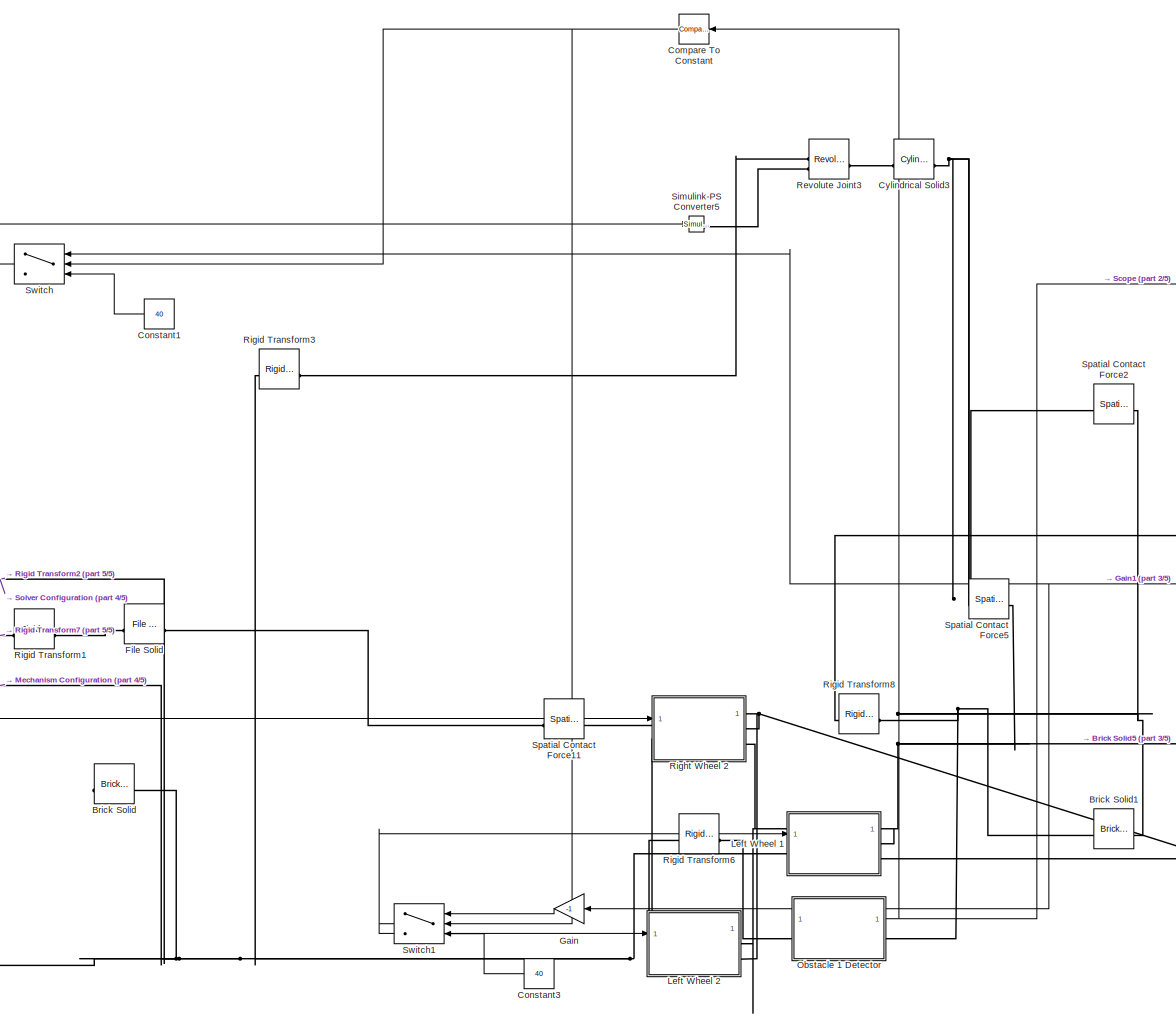
[diagram: root canvas - part 1/5, center side, full height]
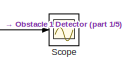
[diagram: root canvas - part 2/5, top center region]
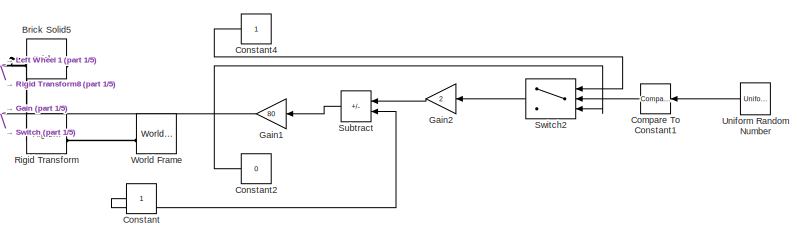
[diagram: root canvas - part 3/5, middle right region]
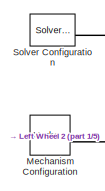
[diagram: root canvas - part 4/5, middle left region]
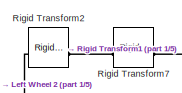
[diagram: root canvas - part 5/5, middle left region]
MODEL slx_b058560f6f9a
KIND model
CONFIG AbsTol = auto
CONFIG EnableMultiTasking = off
CONFIG FixedStep = auto
CONFIG MaxStep = auto
CONFIG MinStep = auto
CONFIG RelTol = 1e-3
CONFIG SampleTimeConstraint = Unconstrained
CONFIG SolverName = VariableStepAuto
CONFIG StartTime = 0.0
CONFIG StopTime = inf
BLOCK [Reference] Brick Solid  REF=sm_lib/Body Elements/Brick Solid
  SourceBlock = sm_lib/Body Elements/Brick Solid
  SourceType = Brick Solid
BLOCK [Reference] Brick Solid1  REF=sm_lib/Body Elements/Brick Solid
  SourceBlock = sm_lib/Body Elements/Brick Solid
  SourceType = Brick Solid
BLOCK [Reference] Brick Solid5  REF=sm_lib/Body Elements/Brick Solid
  SourceBlock = sm_lib/Body Elements/Brick Solid
  SourceType = Brick Solid
BLOCK [Reference] Compare To Constant  REF=simulink/Logic and Bit
Operations/Compare
To Constant
  SourceBlock = simulink/Logic and Bit\nOperations/Compare\nTo Constant
  SourceType = Compare To Constant
BLOCK [Reference] Compare To Constant1  REF=simulink/Logic and Bit
Operations/Compare
To Constant
  SourceBlock = simulink/Logic and Bit\nOperations/Compare\nTo Constant
  SourceType = Compare To Constant
BLOCK [Constant] Constant
BLOCK [Constant] Constant1
  Value = 40
  VectorParams1D = off
BLOCK [Constant] Constant2
  Value = 0
BLOCK [Constant] Constant3
  Value = 40
  VectorParams1D = off
BLOCK [Constant] Constant4
BLOCK [Reference] Cylindrical Solid3  REF=sm_lib/Body Elements/Cylindrical Solid
  SourceBlock = sm_lib/Body Elements/Cylindrical Solid
  SourceType = Cylindrical Solid
BLOCK [Reference] File Solid  REF=sm_lib/Body Elements/File Solid
  SourceBlock = sm_lib/Body Elements/File Solid
  SourceType = File Solid
BLOCK [Gain] Gain
  Gain = -1
BLOCK [Gain] Gain1
  Gain = 80
BLOCK [Gain] Gain2
  Gain = 2
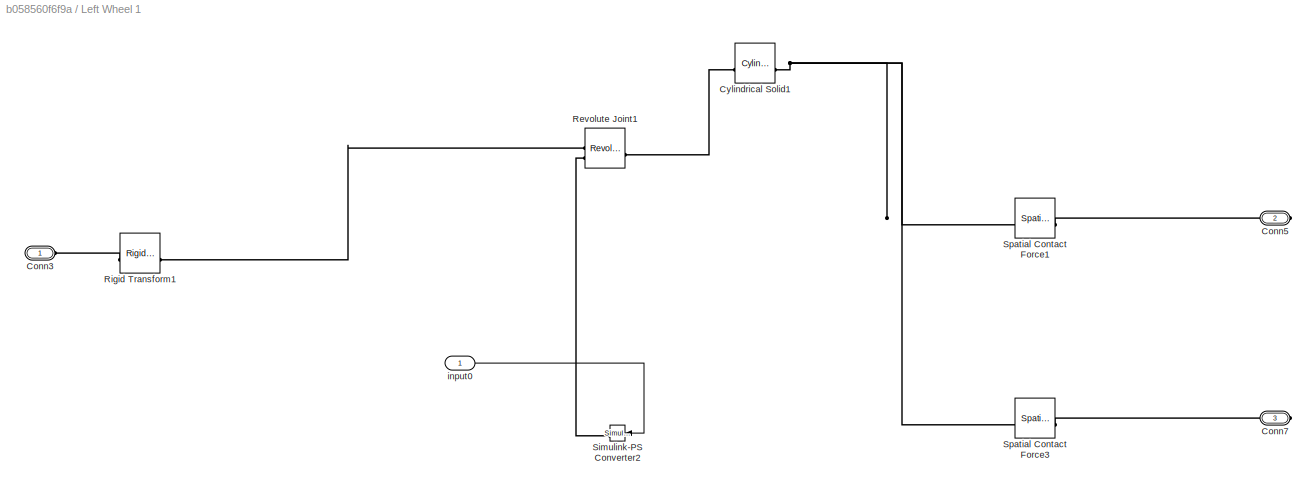
BLOCK [SubSystem] Left Wheel 1
BLOCK [PMIOPort] Left Wheel 1/Conn3
  Side = Left
BLOCK [PMIOPort] Left Wheel 1/Conn5
  Port = 2
  Side = Right
BLOCK [PMIOPort] Left Wheel 1/Conn7
  Port = 3
  Side = Right
BLOCK [Reference] Left Wheel 1/Cylindrical Solid1  REF=sm_lib/Body Elements/Cylindrical Solid
  SourceBlock = sm_lib/Body Elements/Cylindrical Solid
  SourceType = Cylindrical Solid
BLOCK [Reference] Left Wheel 1/Revolute Joint1  REF=sm_lib/Joints/Revolute Joint
  SourceBlock = sm_lib/Joints/Revolute Joint
  SourceType = Revolute Joint
BLOCK [Reference] Left Wheel 1/Rigid Transform1  REF=sm_lib/Frames and
Transforms/Rigid
Transform
  SourceBlock = sm_lib/Frames and\nTransforms/Rigid\nTransform
  SourceType = Rigid\nTransform
BLOCK [Reference] Left Wheel 1/Simulink-PS Converter2  REF=nesl_utility/Simulink-PS
Converter
  SourceBlock = nesl_utility/Simulink-PS\nConverter
  SourceType = Simulink-PS\nConverter
BLOCK [Reference] Left Wheel 1/Spatial Contact Force1  REF=sm_lib/Forces and
Torques/Spatial
Contact Force
  SourceBlock = sm_lib/Forces and\nTorques/Spatial\nContact Force
  SourceType = Spatial\nContact Force
BLOCK [Reference] Left Wheel 1/Spatial Contact Force3  REF=sm_lib/Forces and
Torques/Spatial
Contact Force
  SourceBlock = sm_lib/Forces and\nTorques/Spatial\nContact Force
  SourceType = Spatial\nContact Force
BLOCK [Inport] Left Wheel 1/input0
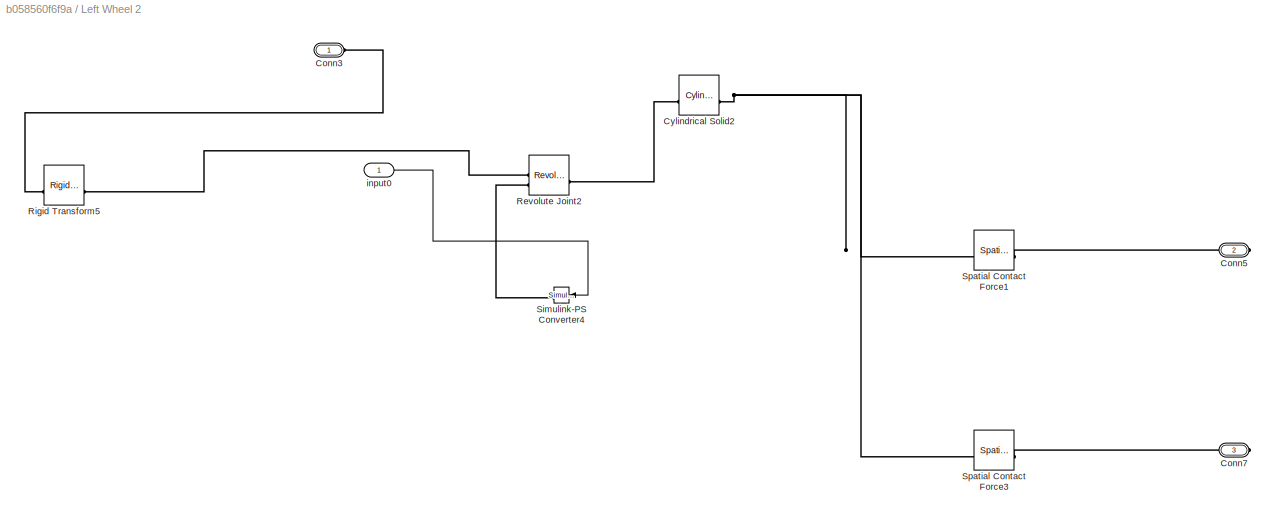
BLOCK [SubSystem] Left Wheel 2
BLOCK [PMIOPort] Left Wheel 2/Conn3
  Side = Left
BLOCK [PMIOPort] Left Wheel 2/Conn5
  Port = 2
  Side = Right
BLOCK [PMIOPort] Left Wheel 2/Conn7
  Port = 3
  Side = Right
BLOCK [Reference] Left Wheel 2/Cylindrical Solid2  REF=sm_lib/Body Elements/Cylindrical Solid
  SourceBlock = sm_lib/Body Elements/Cylindrical Solid
  SourceType = Cylindrical Solid
BLOCK [Reference] Left Wheel 2/Revolute Joint2  REF=sm_lib/Joints/Revolute Joint
  SourceBlock = sm_lib/Joints/Revolute Joint
  SourceType = Revolute Joint
BLOCK [Reference] Left Wheel 2/Rigid Transform5  REF=sm_lib/Frames and
Transforms/Rigid
Transform
  SourceBlock = sm_lib/Frames and\nTransforms/Rigid\nTransform
  SourceType = Rigid\nTransform
BLOCK [Reference] Left Wheel 2/Simulink-PS Converter4  REF=nesl_utility/Simulink-PS
Converter
  SourceBlock = nesl_utility/Simulink-PS\nConverter
  SourceType = Simulink-PS\nConverter
BLOCK [Reference] Left Wheel 2/Spatial Contact Force1  REF=sm_lib/Forces and
Torques/Spatial
Contact Force
  SourceBlock = sm_lib/Forces and\nTorques/Spatial\nContact Force
  SourceType = Spatial\nContact Force
BLOCK [Reference] Left Wheel 2/Spatial Contact Force3  REF=sm_lib/Forces and
Torques/Spatial
Contact Force
  SourceBlock = sm_lib/Forces and\nTorques/Spatial\nContact Force
  SourceType = Spatial\nContact Force
BLOCK [Inport] Left Wheel 2/input0
BLOCK [Reference] Mechanism Configuration  REF=sm_lib/Utilities/Mechanism
Configuration
  SourceBlock = sm_lib/Utilities/Mechanism\nConfiguration
  SourceType = Mechanism\nConfiguration
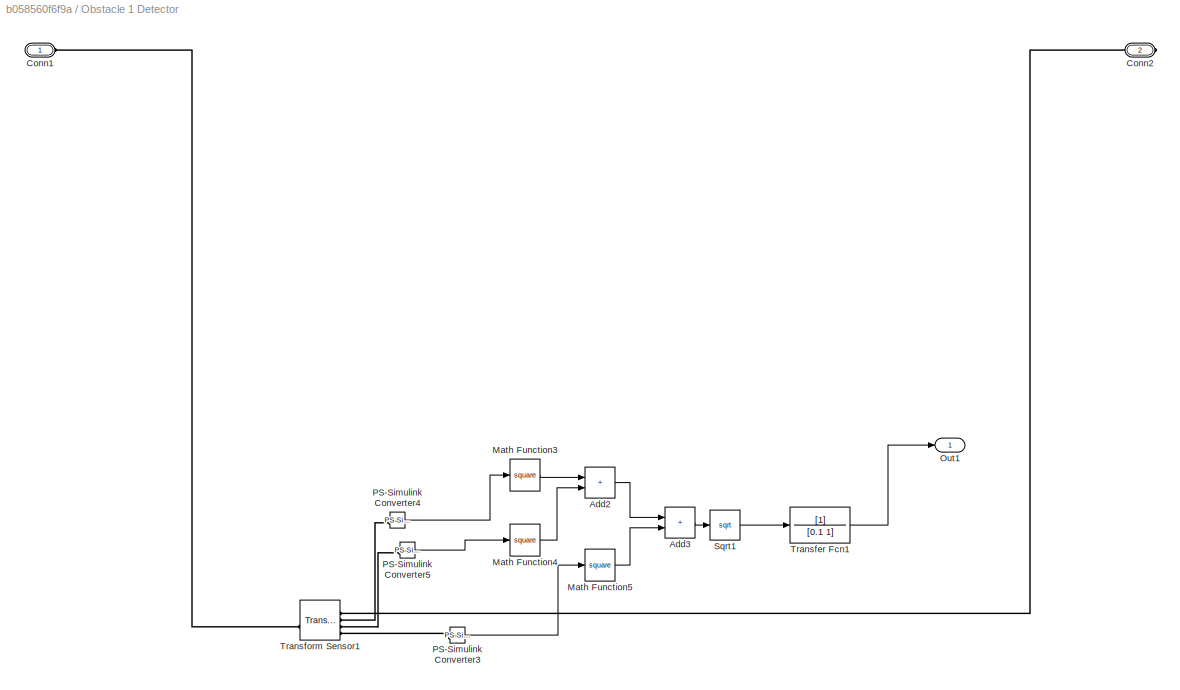
BLOCK [SubSystem] Obstacle 1 Detector
BLOCK [Sum] Obstacle 1 Detector/Add2
  IconShape = rectangular
BLOCK [Sum] Obstacle 1 Detector/Add3
  IconShape = rectangular
BLOCK [PMIOPort] Obstacle 1 Detector/Conn1
  Side = Left
BLOCK [PMIOPort] Obstacle 1 Detector/Conn2
  Port = 2
  Side = Right
BLOCK [Math] Obstacle 1 Detector/Math Function3
  Operator = square
  OutputSignalType = real
BLOCK [Math] Obstacle 1 Detector/Math Function4
  Operator = square
  OutputSignalType = real
BLOCK [Math] Obstacle 1 Detector/Math Function5
  Operator = square
  OutputSignalType = real
BLOCK [Outport] Obstacle 1 Detector/Out1
BLOCK [Reference] Obstacle 1 Detector/PS-Simulink Converter3  REF=nesl_utility/PS-Simulink
Converter
  SourceBlock = nesl_utility/PS-Simulink\nConverter
  SourceType = PS-Simulink\nConverter
BLOCK [Reference] Obstacle 1 Detector/PS-Simulink Converter4  REF=nesl_utility/PS-Simulink
Converter
  SourceBlock = nesl_utility/PS-Simulink\nConverter
  SourceType = PS-Simulink\nConverter
BLOCK [Reference] Obstacle 1 Detector/PS-Simulink Converter5  REF=nesl_utility/PS-Simulink
Converter
  SourceBlock = nesl_utility/PS-Simulink\nConverter
  SourceType = PS-Simulink\nConverter
BLOCK [Sqrt] Obstacle 1 Detector/Sqrt1
  OutputSignalType = real
BLOCK [TransferFcn] Obstacle 1 Detector/Transfer Fcn1
  Denominator = [0.1 1]
BLOCK [Reference] Obstacle 1 Detector/Transform Sensor1  REF=sm_lib/Frames and
Transforms/Transform
Sensor
  SourceBlock = sm_lib/Frames and\nTransforms/Transform\nSensor
  SourceType = Transform\nSensor
BLOCK [Reference] Revolute Joint3  REF=sm_lib/Joints/Revolute Joint
  SourceBlock = sm_lib/Joints/Revolute Joint
  SourceType = Revolute Joint
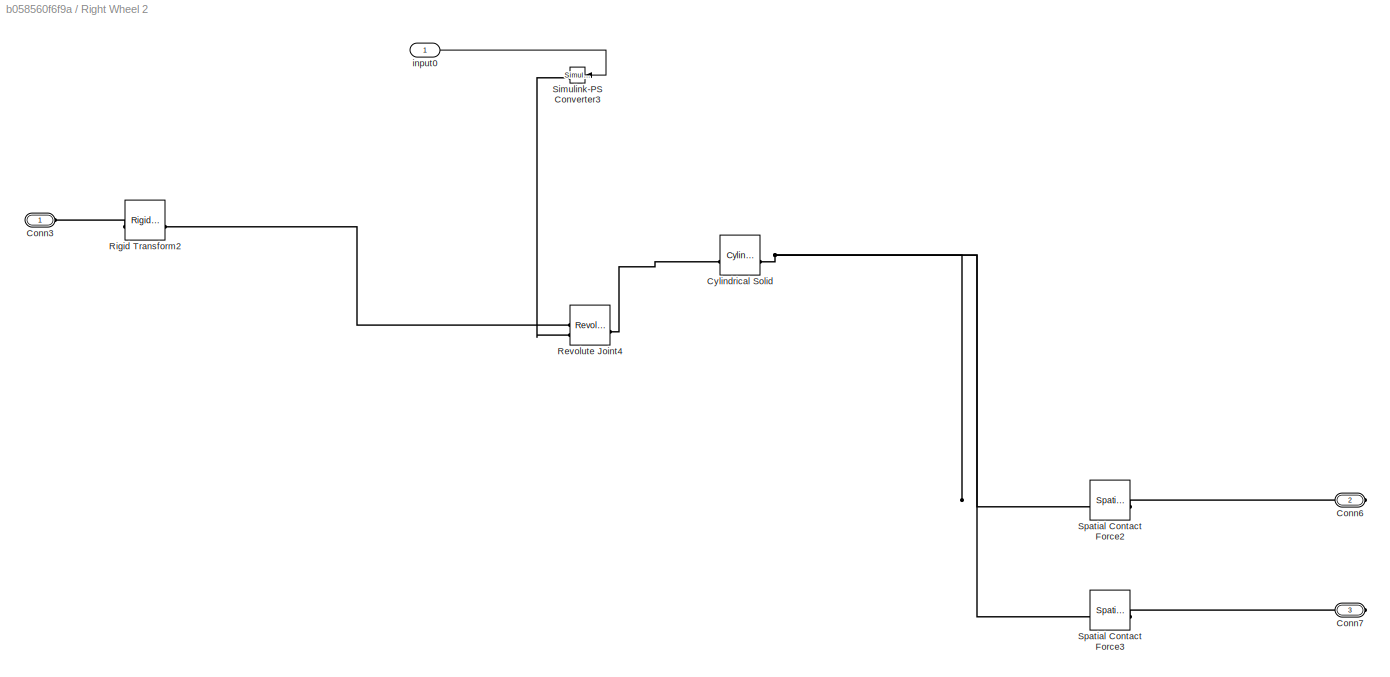
BLOCK [SubSystem] Right Wheel 2
BLOCK [PMIOPort] Right Wheel 2/Conn3
  Side = Left
BLOCK [PMIOPort] Right Wheel 2/Conn6
  Port = 2
  Side = Right
BLOCK [PMIOPort] Right Wheel 2/Conn7
  Port = 3
  Side = Right
BLOCK [Reference] Right Wheel 2/Cylindrical Solid  REF=sm_lib/Body Elements/Cylindrical Solid
  SourceBlock = sm_lib/Body Elements/Cylindrical Solid
  SourceType = Cylindrical Solid
BLOCK [Reference] Right Wheel 2/Revolute Joint4  REF=sm_lib/Joints/Revolute Joint
  SourceBlock = sm_lib/Joints/Revolute Joint
  SourceType = Revolute Joint
BLOCK [Reference] Right Wheel 2/Rigid Transform2  REF=sm_lib/Frames and
Transforms/Rigid
Transform
  SourceBlock = sm_lib/Frames and\nTransforms/Rigid\nTransform
  SourceType = Rigid\nTransform
BLOCK [Reference] Right Wheel 2/Simulink-PS Converter3  REF=nesl_utility/Simulink-PS
Converter
  SourceBlock = nesl_utility/Simulink-PS\nConverter
  SourceType = Simulink-PS\nConverter
BLOCK [Reference] Right Wheel 2/Spatial Contact Force2  REF=sm_lib/Forces and
Torques/Spatial
Contact Force
  SourceBlock = sm_lib/Forces and\nTorques/Spatial\nContact Force
  SourceType = Spatial\nContact Force
BLOCK [Reference] Right Wheel 2/Spatial Contact Force3  REF=sm_lib/Forces and
Torques/Spatial
Contact Force
  SourceBlock = sm_lib/Forces and\nTorques/Spatial\nContact Force
  SourceType = Spatial\nContact Force
BLOCK [Inport] Right Wheel 2/input0
BLOCK [Reference] Rigid Transform  REF=sm_lib/Frames and
Transforms/Rigid
Transform
  SourceBlock = sm_lib/Frames and\nTransforms/Rigid\nTransform
  SourceType = Rigid\nTransform
BLOCK [Reference] Rigid Transform1  REF=sm_lib/Frames and
Transforms/Rigid
Transform
  SourceBlock = sm_lib/Frames and\nTransforms/Rigid\nTransform
  SourceType = Rigid\nTransform
BLOCK [Reference] Rigid Transform2  REF=sm_lib/Frames and
Transforms/Rigid
Transform
  SourceBlock = sm_lib/Frames and\nTransforms/Rigid\nTransform
  SourceType = Rigid\nTransform
BLOCK [Reference] Rigid Transform3  REF=sm_lib/Frames and
Transforms/Rigid
Transform
  SourceBlock = sm_lib/Frames and\nTransforms/Rigid\nTransform
  SourceType = Rigid\nTransform
BLOCK [Reference] Rigid Transform6  REF=sm_lib/Frames and
Transforms/Rigid
Transform
  SourceBlock = sm_lib/Frames and\nTransforms/Rigid\nTransform
  SourceType = Rigid\nTransform
BLOCK [Reference] Rigid Transform7  REF=sm_lib/Frames and
Transforms/Rigid
Transform
  SourceBlock = sm_lib/Frames and\nTransforms/Rigid\nTransform
  SourceType = Rigid\nTransform
BLOCK [Reference] Rigid Transform8  REF=sm_lib/Frames and
Transforms/Rigid
Transform
  SourceBlock = sm_lib/Frames and\nTransforms/Rigid\nTransform
  SourceType = Rigid\nTransform
BLOCK [Scope] Scope
  Floating = off
  NumInputPorts = 1
  ScopeSpecificationString = Simulink.scopes.TimeScopeBlockCfg('CurrentConfiguration', extmgr.ConfigurationSet(extmgr.Configuration('Core','General UI',true),extmgr.Configuration('Core','Source UI',true),extmgr.Configuration('Sources','WiredSimulink',true),extmgr.Configuration('Visuals','Time Domain',true,'SerializedDisplays',{struct('MinYLimReal','41.43341','MaxYLimReal','41.68377','YLabelReal','','MinYLimMag','41.43341','Ma...<+1508ch>
BLOCK [Reference] Simulink-PS Converter5  REF=nesl_utility/Simulink-PS
Converter
  SourceBlock = nesl_utility/Simulink-PS\nConverter
  SourceType = Simulink-PS\nConverter
BLOCK [Reference] Solver Configuration  REF=nesl_utility/Solver
Configuration
  SourceBlock = nesl_utility/Solver\nConfiguration
  SourceType = Solver\nConfiguration
BLOCK [Reference] Spatial Contact Force11  REF=sm_lib/Forces and
Torques/Spatial
Contact Force
  SourceBlock = sm_lib/Forces and\nTorques/Spatial\nContact Force
  SourceType = Spatial\nContact Force
BLOCK [Reference] Spatial Contact Force2  REF=sm_lib/Forces and
Torques/Spatial
Contact Force
  SourceBlock = sm_lib/Forces and\nTorques/Spatial\nContact Force
  SourceType = Spatial\nContact Force
BLOCK [Reference] Spatial Contact Force5  REF=sm_lib/Forces and
Torques/Spatial
Contact Force
  SourceBlock = sm_lib/Forces and\nTorques/Spatial\nContact Force
  SourceType = Spatial\nContact Force
BLOCK [Sum] Subtract
  IconShape = rectangular
  Inputs = +-
BLOCK [Switch] Switch
  InputSameDT = off
  SaturateOnIntegerOverflow = off
  Threshold = 0.5
  ZeroCross = off
BLOCK [Switch] Switch1
  InputSameDT = off
  SaturateOnIntegerOverflow = off
  Threshold = 0.5
  ZeroCross = off
BLOCK [Switch] Switch2
  Criteria = u2 > Threshold
  InputSameDT = off
  SaturateOnIntegerOverflow = off
BLOCK [UniformRandomNumber] Uniform Random Number
  SampleTime = 12
BLOCK [Reference] World Frame  REF=sm_lib/Frames and
Transforms/World Frame
  SourceBlock = sm_lib/Frames and\nTransforms/World Frame
  SourceType = World Frame
LINE Compare To Constant1:1 -> Switch2:2
NET Compare To Constant:1 -> Switch1:2, Switch:2
LINE Constant1:1 -> Switch:3
LINE Constant2:1 -> Switch2:3
LINE Constant3:1 -> Switch1:3
LINE Constant4:1 -> Switch2:1
LINE Constant:1 -> Subtract:2
NET Gain1:1 -> Gain:1, Switch:1
LINE Gain2:1 -> Subtract:1
LINE Gain:1 -> Switch1:1
LINE Left Wheel 1/input0:1 -> Left Wheel 1/Simulink-PS Converter2:1
LINE Left Wheel 2/input0:1 -> Left Wheel 2/Simulink-PS Converter4:1
LINE Obstacle 1 Detector/Add2:1 -> Obstacle 1 Detector/Add3:1
LINE Obstacle 1 Detector/Add3:1 -> Obstacle 1 Detector/Sqrt1:1
LINE Obstacle 1 Detector/Math Function3:1 -> Obstacle 1 Detector/Add2:1
LINE Obstacle 1 Detector/Math Function4:1 -> Obstacle 1 Detector/Add2:2
LINE Obstacle 1 Detector/Math Function5:1 -> Obstacle 1 Detector/Add3:2
LINE Obstacle 1 Detector/PS-Simulink Converter3:1 -> Obstacle 1 Detector/Math Function5:1
LINE Obstacle 1 Detector/PS-Simulink Converter4:1 -> Obstacle 1 Detector/Math Function3:1
LINE Obstacle 1 Detector/PS-Simulink Converter5:1 -> Obstacle 1 Detector/Math Function4:1
LINE Obstacle 1 Detector/Sqrt1:1 -> Obstacle 1 Detector/Transfer Fcn1:1
LINE Obstacle 1 Detector/Transfer Fcn1:1 -> Obstacle 1 Detector/Out1:1
NET Obstacle 1 Detector:1 -> Compare To Constant:1, Scope:1
LINE Right Wheel 2/input0:1 -> Right Wheel 2/Simulink-PS Converter3:1
LINE Subtract:1 -> Gain1:1
NET Switch1:1 -> Left Wheel 1:1, Left Wheel 2:1
LINE Switch2:1 -> Gain2:1
NET Switch:1 -> Right Wheel 2:1, Simulink-PS Converter5:1
LINE Uniform Random Number:1 -> Compare To Constant1:1
PNET net1: Brick Solid1:LConn1 -- Left Wheel 1:RConn2 -- Left Wheel 2:RConn2 -- Right Wheel 2:RConn1 -- Spatial Contact Force11:RConn1 -- Spatial Contact Force2:RConn1
PNET net2: Brick Solid1:RConn1 -- Obstacle 1 Detector:RConn1 -- Rigid Transform8:RConn1
PNET net3: Brick Solid5:LConn1 -- Left Wheel 1:RConn1 -- Left Wheel 2:RConn1 -- Right Wheel 2:RConn2 -- Spatial Contact Force5:RConn1
PNET net4: Brick Solid5:RConn1 -- Rigid Transform8:LConn1 -- Rigid Transform:RConn1
PNET net5: Brick Solid:RConn1 -- Left Wheel 1:LConn1 -- Left Wheel 2:LConn1 -- Mechanism Configuration:RConn1 -- Right Wheel 2:LConn1 -- Rigid Transform2:LConn1 -- Rigid Transform3:LConn1 -- Rigid Transform6:LConn1 -- Solver Configuration:RConn1
PNET net6: Cylindrical Solid3:LConn1 -- Spatial Contact Force2:LConn1 -- Spatial Contact Force5:LConn1
PLINE Cylindrical Solid3:RConn1 -- Revolute Joint3:RConn1
PLINE File Solid:LConn1 -- Spatial Contact Force11:LConn1
PLINE File Solid:RConn1 -- Rigid Transform1:RConn1
PLINE Left Wheel 1/Conn3:RConn1 -- Left Wheel 1/Rigid Transform1:LConn1
PLINE Left Wheel 1/Conn5:RConn1 -- Left Wheel 1/Spatial Contact Force1:RConn1
PLINE Left Wheel 1/Conn7:RConn1 -- Left Wheel 1/Spatial Contact Force3:RConn1
PNET net7: Left Wheel 1/Cylindrical Solid1:LConn1 -- Left Wheel 1/Spatial Contact Force1:LConn1 -- Left Wheel 1/Spatial Contact Force3:LConn1
PLINE Left Wheel 1/Cylindrical Solid1:RConn1 -- Left Wheel 1/Revolute Joint1:RConn1
PLINE Left Wheel 1/Revolute Joint1:LConn1 -- Left Wheel 1/Rigid Transform1:RConn1
PLINE Left Wheel 1/Revolute Joint1:LConn2 -- Left Wheel 1/Simulink-PS Converter2:RConn1
PLINE Left Wheel 2/Conn3:RConn1 -- Left Wheel 2/Rigid Transform5:LConn1
PLINE Left Wheel 2/Conn5:RConn1 -- Left Wheel 2/Spatial Contact Force1:RConn1
PLINE Left Wheel 2/Conn7:RConn1 -- Left Wheel 2/Spatial Contact Force3:RConn1
PNET net8: Left Wheel 2/Cylindrical Solid2:LConn1 -- Left Wheel 2/Spatial Contact Force1:LConn1 -- Left Wheel 2/Spatial Contact Force3:LConn1
PLINE Left Wheel 2/Cylindrical Solid2:RConn1 -- Left Wheel 2/Revolute Joint2:RConn1
PLINE Left Wheel 2/Revolute Joint2:LConn1 -- Left Wheel 2/Rigid Transform5:RConn1
PLINE Left Wheel 2/Revolute Joint2:LConn2 -- Left Wheel 2/Simulink-PS Converter4:RConn1
PLINE Obstacle 1 Detector/Conn1:RConn1 -- Obstacle 1 Detector/Transform Sensor1:LConn1
PLINE Obstacle 1 Detector/Conn2:RConn1 -- Obstacle 1 Detector/Transform Sensor1:RConn1
PLINE Obstacle 1 Detector/PS-Simulink Converter3:LConn1 -- Obstacle 1 Detector/Transform Sensor1:RConn4
PLINE Obstacle 1 Detector/PS-Simulink Converter4:LConn1 -- Obstacle 1 Detector/Transform Sensor1:RConn2
PLINE Obstacle 1 Detector/PS-Simulink Converter5:LConn1 -- Obstacle 1 Detector/Transform Sensor1:RConn3
PLINE Obstacle 1 Detector:LConn1 -- Rigid Transform6:RConn1
PLINE Revolute Joint3:LConn1 -- Rigid Transform3:RConn1
PLINE Revolute Joint3:LConn2 -- Simulink-PS Converter5:RConn1
PLINE Right Wheel 2/Conn3:RConn1 -- Right Wheel 2/Rigid Transform2:LConn1
PLINE Right Wheel 2/Conn6:RConn1 -- Right Wheel 2/Spatial Contact Force2:RConn1
PLINE Right Wheel 2/Conn7:RConn1 -- Right Wheel 2/Spatial Contact Force3:RConn1
PNET net9: Right Wheel 2/Cylindrical Solid:LConn1 -- Right Wheel 2/Spatial Contact Force2:LConn1 -- Right Wheel 2/Spatial Contact Force3:LConn1
PLINE Right Wheel 2/Cylindrical Solid:RConn1 -- Right Wheel 2/Revolute Joint4:RConn1
PLINE Right Wheel 2/Revolute Joint4:LConn1 -- Right Wheel 2/Rigid Transform2:RConn1
PLINE Right Wheel 2/Revolute Joint4:LConn2 -- Right Wheel 2/Simulink-PS Converter3:RConn1
PLINE Rigid Transform1:LConn1 -- Rigid Transform7:RConn1
PLINE Rigid Transform2:RConn1 -- Rigid Transform7:LConn1
PLINE Rigid Transform:LConn1 -- World Frame:RConn1
note: NET lines group one-source signal fan-out (src -> all destinations, sorted); 1:1 wires keep LINE; PNET lines group multi-terminal physical nets as a canonical sorted terminal list (undirected conserving connections); 2-terminal nets keep the pairwise PLINE form
